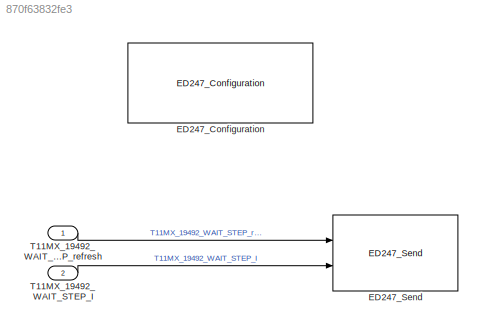
MODEL slx_870f63832fe3
KIND model
CONFIG AbsTol = auto
CONFIG EnableMultiTasking = off
CONFIG FixedStep = auto
CONFIG MaxStep = auto
CONFIG MinStep = auto
CONFIG RelTol = 1e-3
CONFIG SampleTimeConstraint = Unconstrained
CONFIG Solver = VariableStepAuto
CONFIG SolverName = VariableStepAuto
CONFIG StartTime = 0.0
CONFIG StopTime = 10.0
BLOCK [Reference] ED247_Configuration  REF=lib_ed247/ED247_Configuration
  Ports = []
  SourceBlock = lib_ed247/ED247_Configuration
  SourceType = Configurable block example
BLOCK [Reference] ED247_Send  REF=lib_ed247/ED247_Send
  Ports = [2]
  SourceBlock = lib_ed247/ED247_Send
  SourceType = ED247 Send
BLOCK [Inport] T11MX_19492_WAIT_STEP_I
  IconDisplay = Port number
  OutDataTypeStr = uint8
  Port = 2
  PortDimensions = 4
  SampleTime = 0.1
BLOCK [Inport] T11MX_19492_WAIT_STEP_refresh
  IconDisplay = Port number
  OutDataTypeStr = boolean
  PortDimensions = 1
LINE T11MX_19492_WAIT_STEP_I:1 -> ED247_Send:2
LINE T11MX_19492_WAIT_STEP_refresh:1 -> ED247_Send:1
